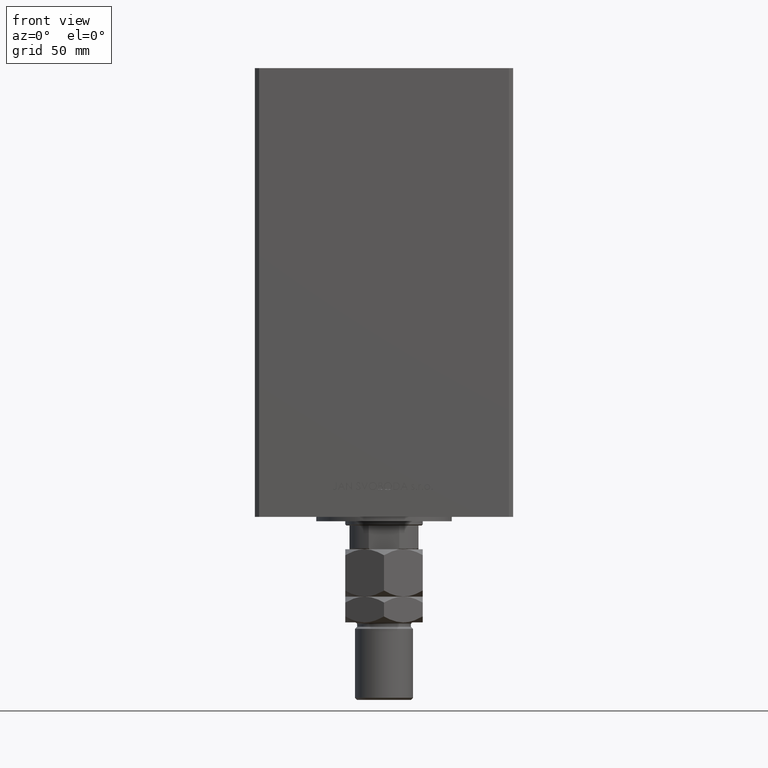
[diagram: clean part render]
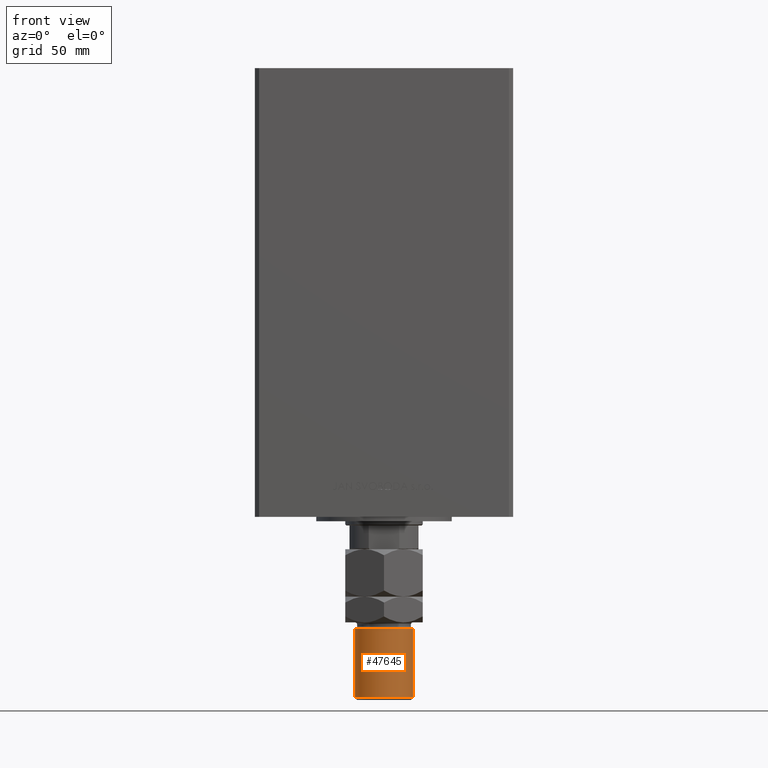
[diagram: same view with one face highlighted and labeled with its STEP entity id]
A machine part, front view. The second image highlights one B-rep face of the part: STEP entity #47645.
In plain terms, the highlighted cylindrical surface (edge-blend (fillet) strip) has radius 13.5 mm, axis along (0, -0, 1).
Its self-contained STEP definition (entity closure, byte-faithful):
#664 = DIRECTION ( 'NONE',  ( -1.000000000000000000, 0.000000000000000000, 0.000000000000000000 ) ) ;
#1747 = DIRECTION ( 'NONE',  ( 1.000000000000000000, 0.000000000000000000, 0.000000000000000000 ) ) ;
#3756 = ORIENTED_EDGE ( 'NONE', *, *, #8937, .T. ) ;
#4486 = DIRECTION ( 'NONE',  ( -0.000000000000000000, -0.000000000000000000, -1.000000000000000000 ) ) ;
#5751 = EDGE_CURVE ( 'NONE', #49201, #22779, #16991, .T. ) ;
#8114 = EDGE_CURVE ( 'NONE', #49201, #21672, #43579, .T. ) ;
#8166 = ORIENTED_EDGE ( 'NONE', *, *, #36080, .T. ) ;
#8213 = ORIENTED_EDGE ( 'NONE', *, *, #8114, .T. ) ;
#8576 = CYLINDRICAL_SURFACE ( 'NONE', #52064, 13.50000000000000000 ) ;
#8937 = EDGE_CURVE ( 'NONE', #21559, #22779, #30589, .T. ) ;
#11392 = CARTESIAN_POINT ( 'NONE',  ( -13.50000000000000000, 0.000000000000000000, 68.99999999999998579 ) ) ;
#11608 = CARTESIAN_POINT ( 'NONE',  ( 0.000000000000000000, 0.000000000000000000, 68.99999999999998579 ) ) ;
#12129 = DIRECTION ( 'NONE',  ( 0.000000000000000000, 0.000000000000000000, -1.000000000000000000 ) ) ;
#12404 = DIRECTION ( 'NONE',  ( -0.000000000000000000, -0.000000000000000000, 1.000000000000000000 ) ) ;
#14068 = AXIS2_PLACEMENT_3D ( 'NONE', #45587, #12404, #1747 ) ;
#16331 = CARTESIAN_POINT ( 'NONE',  ( -13.50000000000000000, 0.000000000000000000, 70.00000000000000000 ) ) ;
#16559 = VECTOR ( 'NONE', #50178, 1000.000000000000000 ) ;
#16578 = CARTESIAN_POINT ( 'NONE',  ( 13.50000000000000000, 1.653273178848926867E-15, 68.99999999999998579 ) ) ;
#16991 = LINE ( 'NONE', #33589, #16559 ) ;
#19245 = AXIS2_PLACEMENT_3D ( 'NONE', #11608, #12129, #53478 ) ;
#20830 = CARTESIAN_POINT ( 'NONE',  ( 0.000000000000000000, 0.000000000000000000, 70.00000000000000000 ) ) ;
#20934 = DIRECTION ( 'NONE',  ( -0.000000000000000000, -0.000000000000000000, -1.000000000000000000 ) ) ;
#21559 = VERTEX_POINT ( 'NONE', #39141 ) ;
#21672 = VERTEX_POINT ( 'NONE', #11392 ) ;
#22779 = VERTEX_POINT ( 'NONE', #31062 ) ;
#23187 = EDGE_LOOP ( 'NONE', ( #44830, #8213, #8166, #3756 ) ) ;
#29006 = FACE_OUTER_BOUND ( 'NONE', #23187, .T. ) ;
#29368 = LINE ( 'NONE', #16331, #50397 ) ;
#30589 = CIRCLE ( 'NONE', #14068, 13.50000000000000000 ) ;
#31062 = CARTESIAN_POINT ( 'NONE',  ( 13.50000000000000000, 1.653273178848926867E-15, 37.00000000000000000 ) ) ;
#33589 = CARTESIAN_POINT ( 'NONE',  ( 13.50000000000000000, 1.653273178848926867E-15, 70.00000000000000000 ) ) ;
#36080 = EDGE_CURVE ( 'NONE', #21672, #21559, #29368, .T. ) ;
#39141 = CARTESIAN_POINT ( 'NONE',  ( -13.50000000000000000, 0.000000000000000000, 37.00000000000000000 ) ) ;
#43579 = CIRCLE ( 'NONE', #19245, 13.50000000000000000 ) ;
#44830 = ORIENTED_EDGE ( 'NONE', *, *, #5751, .F. ) ;
#45587 = CARTESIAN_POINT ( 'NONE',  ( 0.000000000000000000, 0.000000000000000000, 37.00000000000000000 ) ) ;
#47645 = ADVANCED_FACE ( 'NONE', ( #29006 ), #8576, .T. ) ;
#49201 = VERTEX_POINT ( 'NONE', #16578 ) ;
#50178 = DIRECTION ( 'NONE',  ( -0.000000000000000000, -0.000000000000000000, -1.000000000000000000 ) ) ;
#50397 = VECTOR ( 'NONE', #20934, 1000.000000000000000 ) ;
#52064 = AXIS2_PLACEMENT_3D ( 'NONE', #20830, #4486, #664 ) ;
#53478 = DIRECTION ( 'NONE',  ( 1.000000000000000000, 0.000000000000000000, 0.000000000000000000 ) ) ;